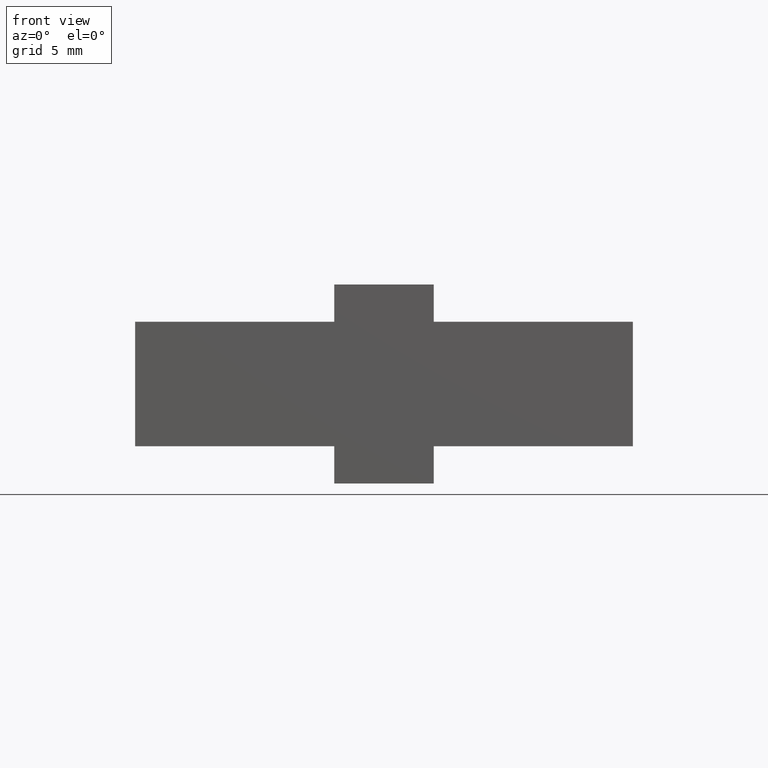
[diagram: clean part render]
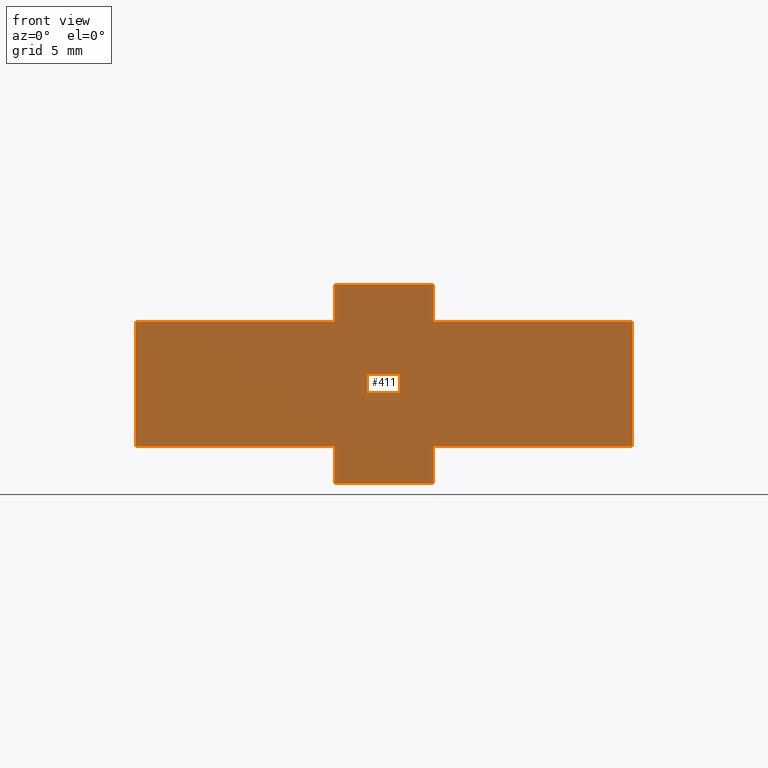
[diagram: same view with one face highlighted and labeled with its STEP entity id]
A machine part, front view. The second image highlights one B-rep face of the part: STEP entity #411.
In plain terms, the highlighted planar face has unit normal (0, 1, 0).
Its self-contained STEP definition (entity closure, byte-faithful):
#51=CARTESIAN_POINT('',(4.0,0.0,0.0));
#52=VERTEX_POINT('',#51);
#67=CARTESIAN_POINT('',(4.0,0.0,3.0));
#68=VERTEX_POINT('',#67);
#75=CARTESIAN_POINT('',(4.0,0.0,0.0));
#76=DIRECTION('',(0.0,0.0,1.0));
#77=VECTOR('',#76,3.0);
#78=LINE('',#75,#77);
#79=EDGE_CURVE('',#52,#68,#78,.T.);
#89=CARTESIAN_POINT('',(-4.000000000000004,0.0,3.0));
#90=VERTEX_POINT('',#89);
#107=CARTESIAN_POINT('',(-4.000000000000004,0.0,0.0));
#108=VERTEX_POINT('',#107);
#115=CARTESIAN_POINT('',(-4.000000000000004,0.0,0.0));
#116=DIRECTION('',(0.0,0.0,1.0));
#117=VECTOR('',#116,3.0);
#118=LINE('',#115,#117);
#119=EDGE_CURVE('',#108,#90,#118,.T.);
#136=CARTESIAN_POINT('',(4.0,0.0,0.0));
#137=DIRECTION('',(-1.0,0.0,0.0));
#138=VECTOR('',#137,8.000000000000004);
#139=LINE('',#136,#138);
#140=EDGE_CURVE('',#52,#108,#139,.T.);
#151=CARTESIAN_POINT('',(4.0,0.0,13.0));
#152=VERTEX_POINT('',#151);
#169=CARTESIAN_POINT('',(4.0,0.0,16.000000000000007));
#170=VERTEX_POINT('',#169);
#177=CARTESIAN_POINT('',(4.0,0.0,16.000000000000007));
#178=DIRECTION('',(0.0,0.0,-1.0));
#179=VECTOR('',#178,3.000000000000005);
#180=LINE('',#177,#179);
#181=EDGE_CURVE('',#170,#152,#180,.T.);
#193=CARTESIAN_POINT('',(-4.000000000000004,0.0,16.000000000000007));
#194=VERTEX_POINT('',#193);
#209=CARTESIAN_POINT('',(-4.000000000000004,0.0,13.0));
#210=VERTEX_POINT('',#209);
#217=CARTESIAN_POINT('',(-4.000000000000004,0.0,16.000000000000007));
#218=DIRECTION('',(0.0,0.0,-1.0));
#219=VECTOR('',#218,3.000000000000005);
#220=LINE('',#217,#219);
#221=EDGE_CURVE('',#194,#210,#220,.T.);
#238=CARTESIAN_POINT('',(-4.000000000000004,0.0,16.000000000000007));
#239=DIRECTION('',(1.0,0.0,0.0));
#240=VECTOR('',#239,8.000000000000004);
#241=LINE('',#238,#240);
#242=EDGE_CURVE('',#194,#170,#241,.T.);
#254=CARTESIAN_POINT('',(-20.000000000000021,0.0,3.0));
#255=VERTEX_POINT('',#254);
#256=CARTESIAN_POINT('',(-20.000000000000021,0.0,3.0));
#257=DIRECTION('',(1.0,0.0,0.0));
#258=VECTOR('',#257,16.000000000000014);
#259=LINE('',#256,#258);
#260=EDGE_CURVE('',#255,#90,#259,.T.);
#310=CARTESIAN_POINT('',(19.999999999999993,0.0,3.0));
#311=VERTEX_POINT('',#310);
#318=CARTESIAN_POINT('',(4.0,0.0,3.0));
#319=DIRECTION('',(1.0,0.0,0.0));
#320=VECTOR('',#319,15.999999999999993);
#321=LINE('',#318,#320);
#322=EDGE_CURVE('',#68,#311,#321,.T.);
#350=CARTESIAN_POINT('',(-20.000000000000021,0.0,13.0));
#351=VERTEX_POINT('',#350);
#352=CARTESIAN_POINT('',(-20.000000000000021,0.0,13.0));
#353=DIRECTION('',(0.0,0.0,-1.0));
#354=VECTOR('',#353,10.0);
#355=LINE('',#352,#354);
#356=EDGE_CURVE('',#351,#255,#355,.T.);
#375=CARTESIAN_POINT('',(-22.000000000000021,0.0,-0.800000000000001));
#376=DIRECTION('',(0.0,1.0,0.0));
#377=DIRECTION('',(0.0,0.0,1.0));
#378=AXIS2_PLACEMENT_3D('',#375,#376,#377);
#379=PLANE('',#378);
#380=ORIENTED_EDGE('',*,*,#260,.T.);
#381=ORIENTED_EDGE('',*,*,#119,.F.);
#382=ORIENTED_EDGE('',*,*,#140,.F.);
#383=ORIENTED_EDGE('',*,*,#79,.T.);
#384=ORIENTED_EDGE('',*,*,#322,.T.);
#385=CARTESIAN_POINT('',(19.999999999999993,0.0,13.0));
#386=VERTEX_POINT('',#385);
#387=CARTESIAN_POINT('',(19.999999999999993,0.0,13.0));
#388=DIRECTION('',(0.0,0.0,-1.0));
#389=VECTOR('',#388,10.0);
#390=LINE('',#387,#389);
#391=EDGE_CURVE('',#386,#311,#390,.T.);
#392=ORIENTED_EDGE('',*,*,#391,.F.);
#393=CARTESIAN_POINT('',(4.0,0.0,13.0));
#394=DIRECTION('',(1.0,0.0,0.0));
#395=VECTOR('',#394,15.999999999999993);
#396=LINE('',#393,#395);
#397=EDGE_CURVE('',#152,#386,#396,.T.);
#398=ORIENTED_EDGE('',*,*,#397,.F.);
#399=ORIENTED_EDGE('',*,*,#181,.F.);
#400=ORIENTED_EDGE('',*,*,#242,.F.);
#401=ORIENTED_EDGE('',*,*,#221,.T.);
#402=CARTESIAN_POINT('',(-20.000000000000021,0.0,13.0));
#403=DIRECTION('',(1.0,0.0,0.0));
#404=VECTOR('',#403,16.000000000000014);
#405=LINE('',#402,#404);
#406=EDGE_CURVE('',#351,#210,#405,.T.);
#407=ORIENTED_EDGE('',*,*,#406,.F.);
#408=ORIENTED_EDGE('',*,*,#356,.T.);
#409=EDGE_LOOP('',(#380,#381,#382,#383,#384,#392,#398,#399,#400,#401,#407,#408));
#410=FACE_OUTER_BOUND('',#409,.T.);
#411=ADVANCED_FACE('',(#410),#379,.F.);